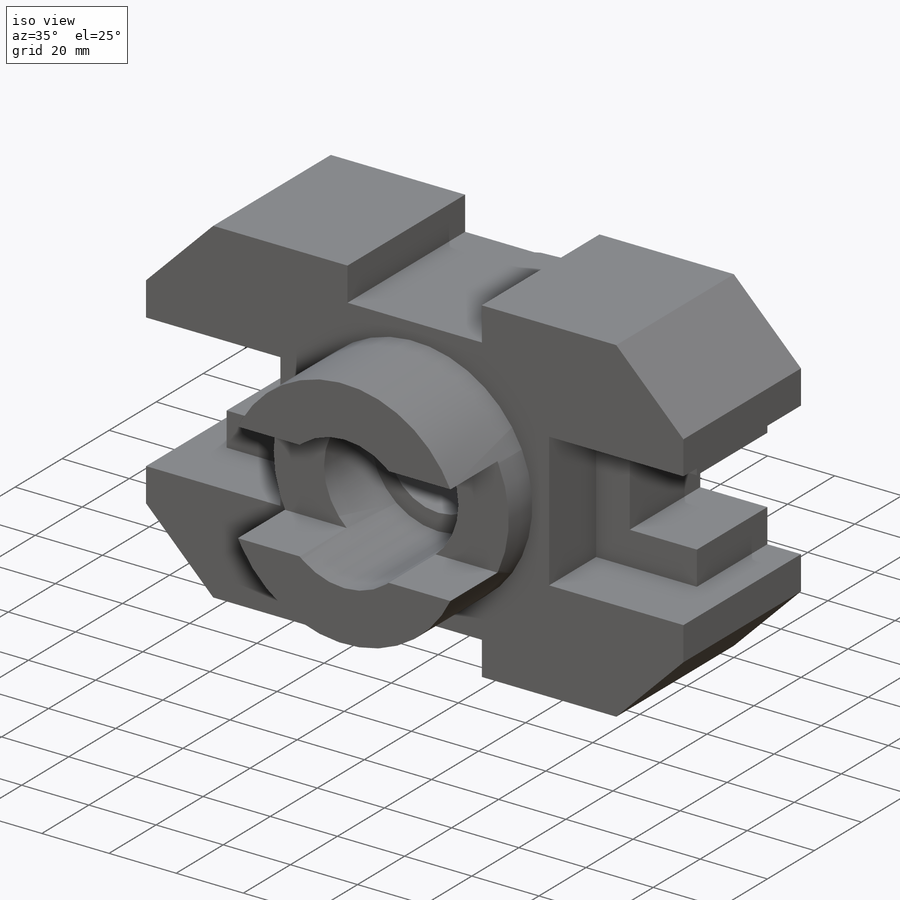
[diagram: iso view]
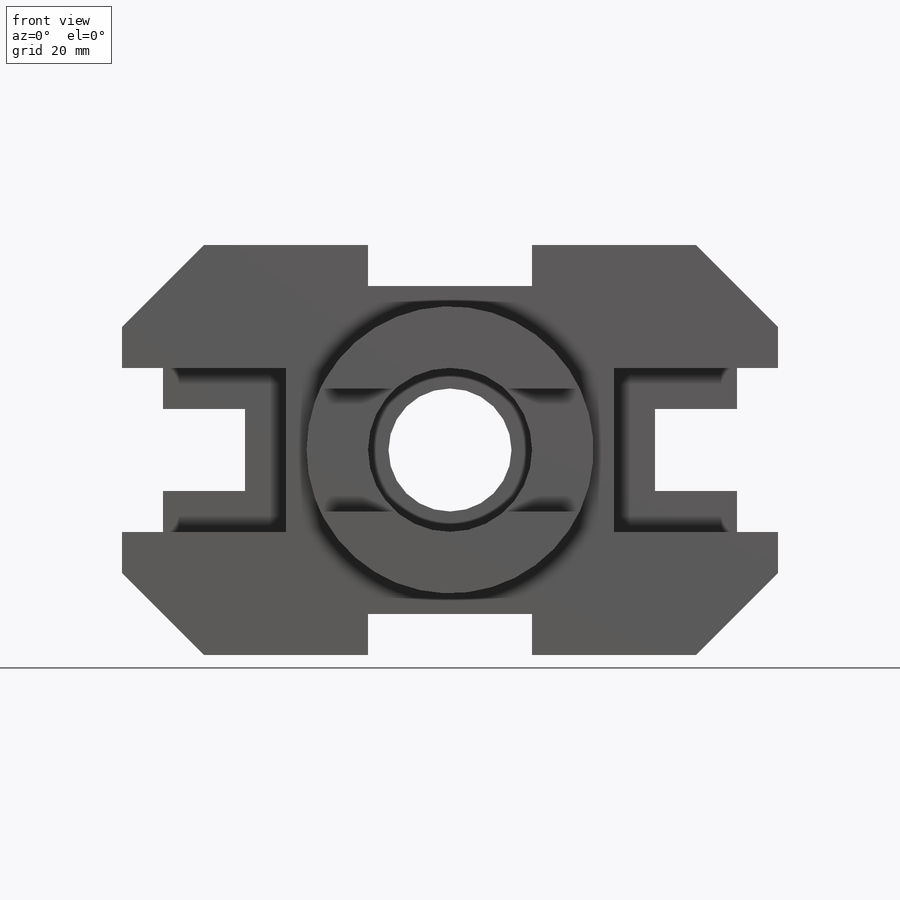
[diagram: front view]
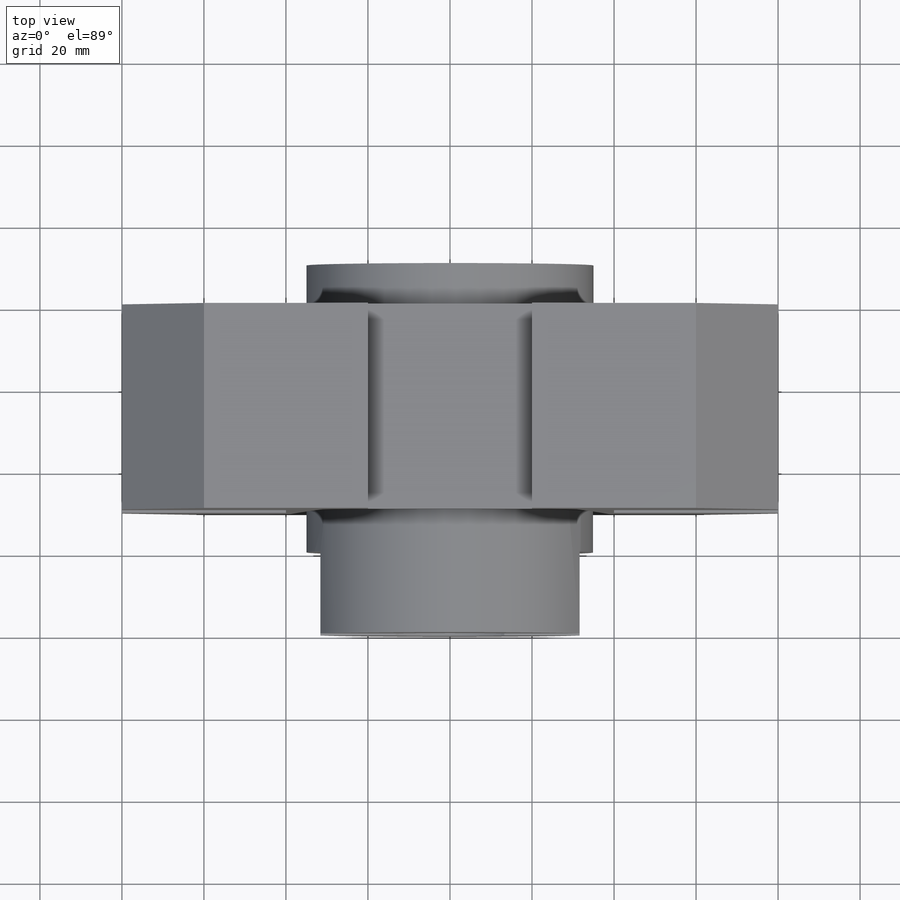
[diagram: top view]
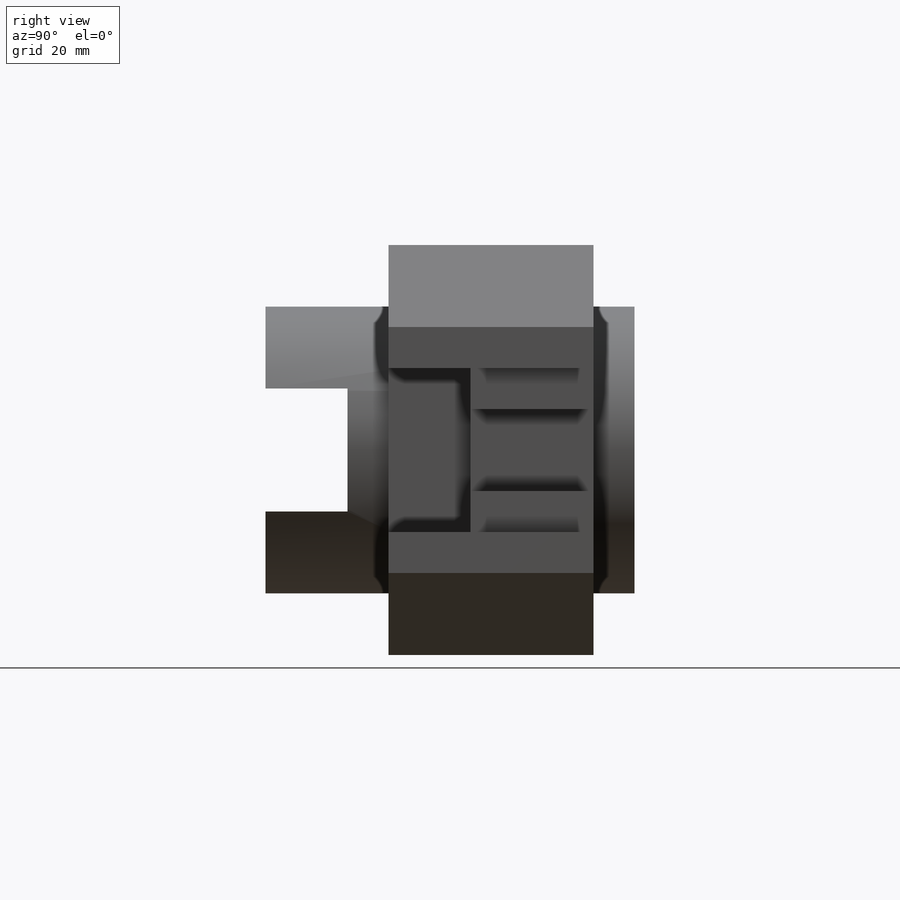
[diagram: right view]
SOLIDWORKS PART (.sldprt)
format: sldprt  version: not decoded by parser v0  size: 400,384 bytes
history: native  units: mm
features: sketch x13, cut_extrude x10, extrude x3, material x1 (+13 scaffold rows collapsed)
feature tree (40):
  scaffold x13  (default folders/planes/origin — collapsed)
  material  "Material <not specified>"
  sketch  "Sketch1"  dims[D1=100.0mm D2=160.0mm]
  extrude  "Boss-Extrude2"  Depth=50mm
  sketch  "Sketch4"  dims[D1=20.0mm D2=20.0mm D3=20.0mm D4=20.0mm D5=20.0mm D6=20.0mm D7=20.0mm D8=20.0mm]
  cut_extrude  "Cut-Extrude2"  Depth=50mm
  sketch  "Sketch5"  dims[D1=10.0mm D2=10.0mm D3=10.0mm D4=10.0mm D5=10.0mm D6=10.0mm D7=20.0mm D8=20.0mm D9=10.0mm D10=10.0mm D11=10.0mm D12=10.0mm D13=10.0mm D14=10.0mm D15=20.0mm]
  cut_extrude  "Cut-Extrude3"  Depth=50mm
  sketch  "Sketch6"  dims[D1=30.0mm D2=30.0mm]
  cut_extrude  "Cut-Extrude4"  Depth=20mm
  sketch  "Sketch7"  dims[D1=30.0mm]
  cut_extrude  "Cut-Extrude5"  Depth=20mm
  sketch  "Sketch8"  dims[D1=40.0mm D2=40.0mm D3=10.0mm D4=10.0mm D5=20.0mm D6=20.0mm]
  cut_extrude  "Cut-Extrude6"  Depth=125mm
  sketch  "Sketch9"  dims[D1=70.0mm D2=80.0mm D3=40.0mm]
  extrude  "Boss-Extrude3"  Depth=10mm
  sketch  "Sketch10"  dims[D1=30.0mm]
  cut_extrude  "Cut-Extrude8"  Depth=123mm
  sketch  "Sketch11"  dims[D1=70.0mm]
  extrude  "Boss-Extrude4"  Depth=30mm
  sketch  "Sketch12"  dims[D1=30.0mm]
  cut_extrude  "Cut-Extrude9"  Depth=30mm
  sketch  "Sketch13"  dims[D1=40.0mm]
  cut_extrude  "Cut-Extrude10"  Depth=30mm
  sketch  "Sketch14"  dims[D1=70.0mm D2=40.0mm D3=15.0mm D4=15.0mm D5=15.0mm D6=15.0mm]
  cut_extrude  "Cut-Extrude11"  Depth=20mm
  sketch  "Sketch15"  dims[D1=30.0mm D2=40.0mm]
  cut_extrude  "Cut-Extrude12"  Depth=10mm
decode coverage: 26 of 26 modeling features carry decoded parameters
note: suppression state not decoded; provenance and decode notes live in map.json
